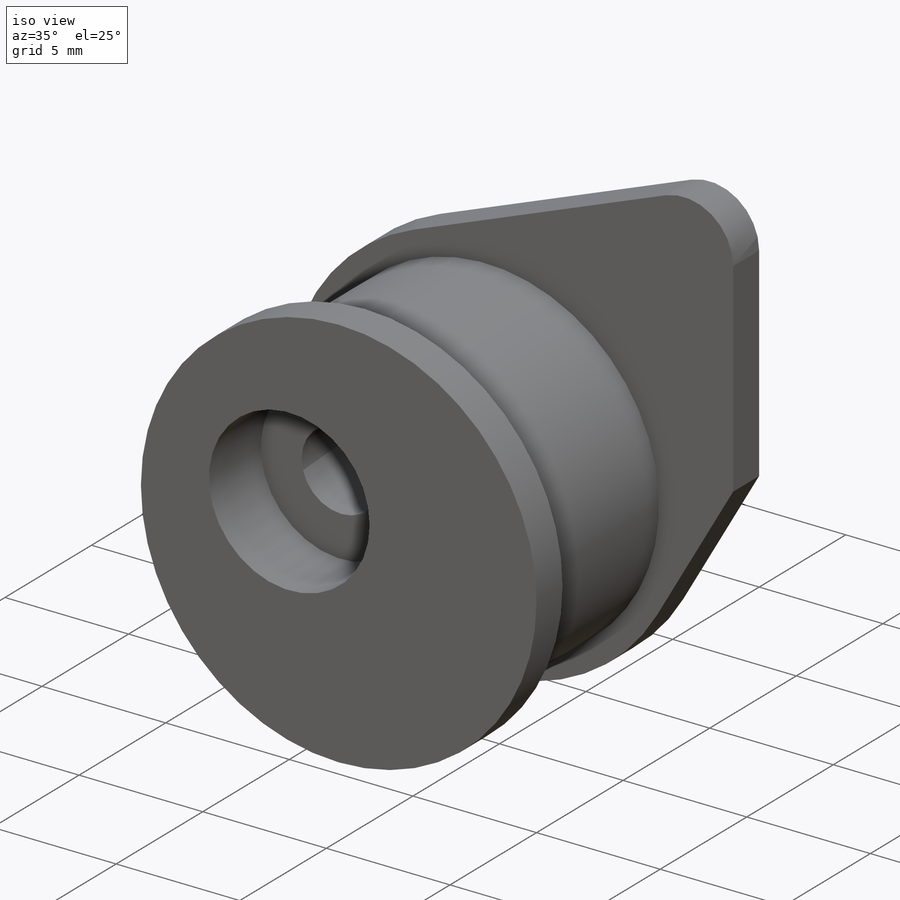
[diagram: iso view]
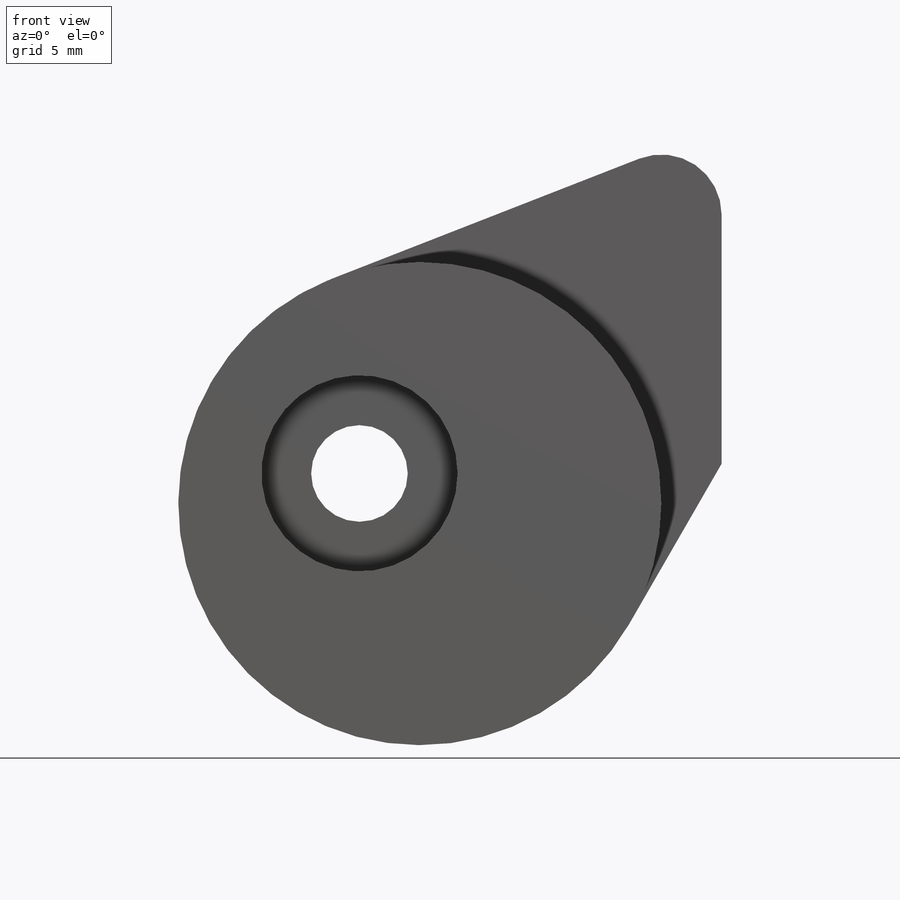
[diagram: front view]
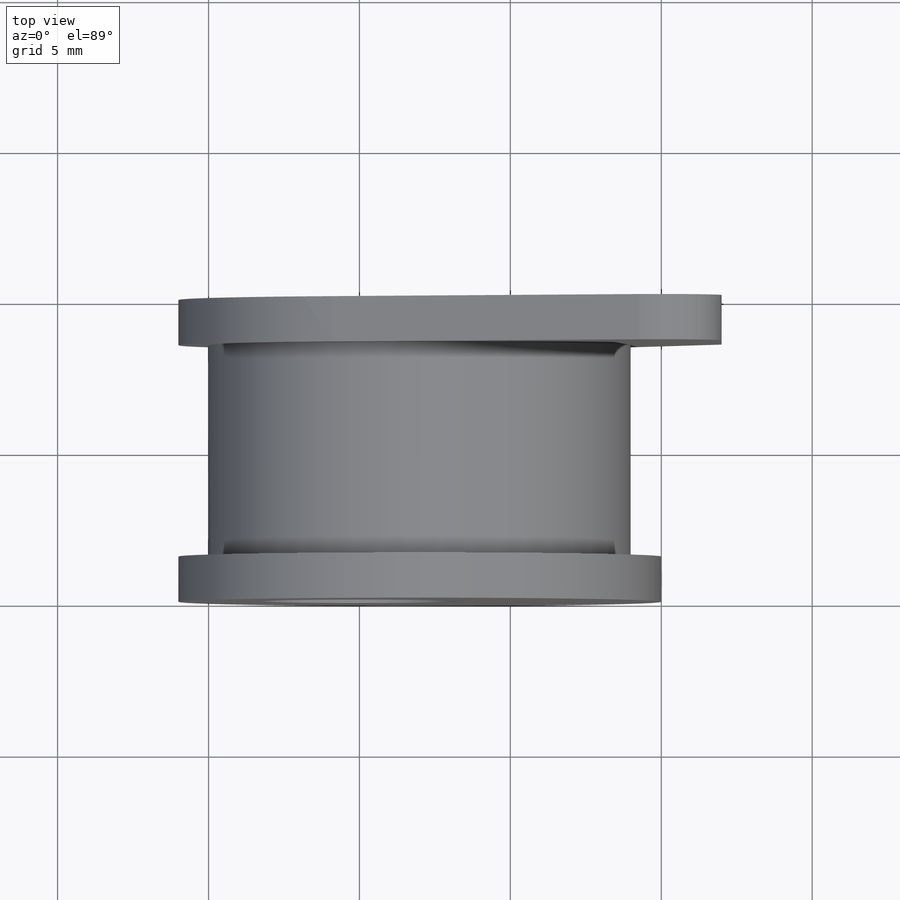
[diagram: top view]
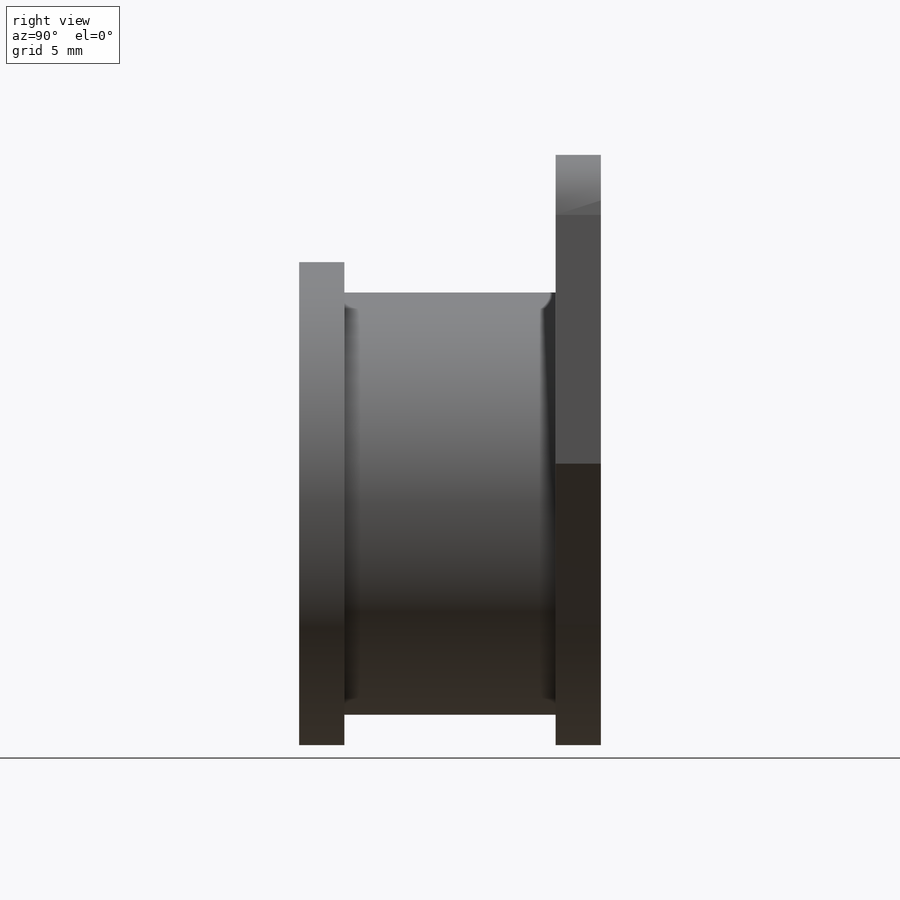
[diagram: right view]
SOLIDWORKS PART (.sldprt)
format: sldprt  version: not decoded by parser v0  size: 184,320 bytes
history: native  units: mm
features: sketch x4, extrude x2, material x1, cut_extrude x1, plane x1, cut_revolve x1, fillet x1 (+12 scaffold rows collapsed)
feature tree (23):
  scaffold x12  (default folders/planes/origin — collapsed)
  material  "Material <not specified>"
  sketch  "Sketch1"  dims[c1.D3=3.2mm c1.D4=16.0mm c1.D1=2.0mm c1.D2=10.0mm c1.D5=1.0mm c2.D1=1.0mm c2.D5=2.0mm]
  extrude  "Boss-Extrude1"  Depth=10mm
  sketch  "Sketch2"  dims[D1=6.5mm]
  cut_extrude  "Cut-Extrude1"  Depth=3mm
  plane  "Plane1"
  sketch  "Sketch3"  dims[c1.D1=1.0mm c1.D2=7.0mm c2.D1=7.0mm]
  cut_revolve  "Cut-Revolve1"  Angle=360deg
  sketch  "Sketch4"  dims[D1=12.0mm]
  extrude  "Boss-Extrude2"  [1 undecoded]
  fillet  "Fillet1"  Radius=2mm
decode coverage: 8 of 9 modeling features carry decoded parameters
note: 1 parameter value undecoded
note: suppression state not decoded; provenance and decode notes live in map.json
